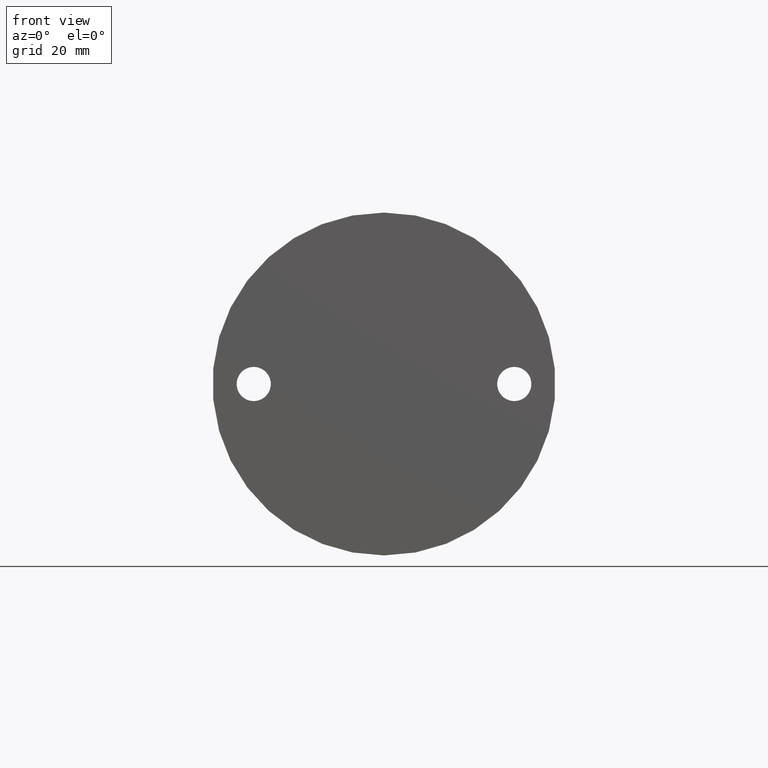
[diagram: clean part render]
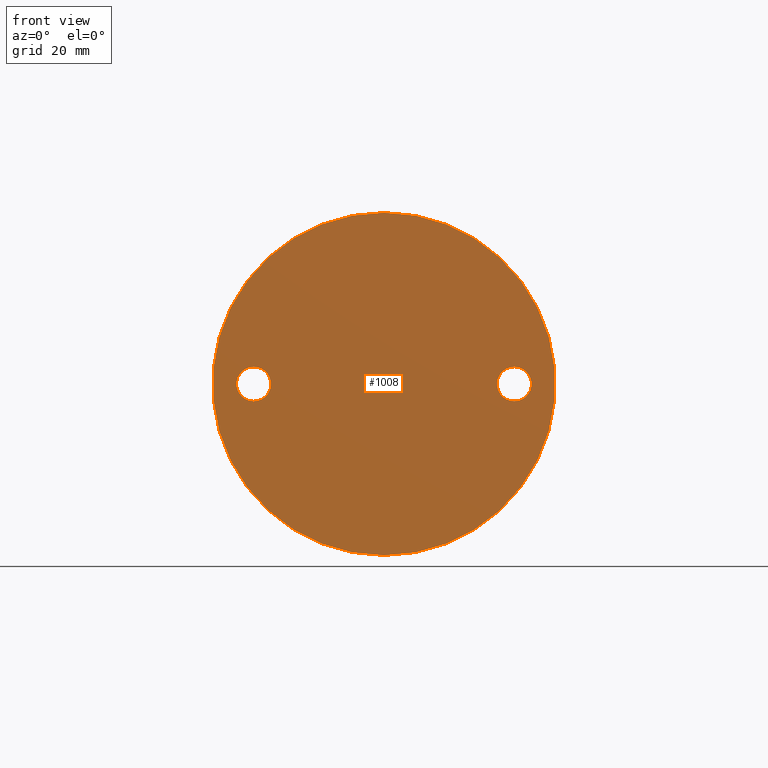
[diagram: same view with one face highlighted and labeled with its STEP entity id]
A machine part, front view. The second image highlights one B-rep face of the part: STEP entity #1008.
In plain terms, the highlighted planar face has unit normal (0, 1, 0).
Its self-contained STEP definition (entity closure, byte-faithful):
#169=FACE_BOUND('',#236,.T.);
#170=FACE_BOUND('',#237,.T.);
#177=FACE_OUTER_BOUND('',#235,.T.);
#235=EDGE_LOOP('',(#626));
#236=EDGE_LOOP('',(#627,#628));
#237=EDGE_LOOP('',(#629,#630));
#301=CIRCLE('',#1166,62.5);
#302=CIRCLE('',#1167,6.25);
#303=CIRCLE('',#1168,6.25);
#304=CIRCLE('',#1169,6.25);
#305=CIRCLE('',#1170,6.25);
#372=VERTEX_POINT('',#1591);
#373=VERTEX_POINT('',#1593);
#374=VERTEX_POINT('',#1594);
#375=VERTEX_POINT('',#1597);
#376=VERTEX_POINT('',#1598);
#474=EDGE_CURVE('',#372,#372,#301,.T.);
#475=EDGE_CURVE('',#373,#374,#302,.T.);
#476=EDGE_CURVE('',#374,#373,#303,.T.);
#477=EDGE_CURVE('',#375,#376,#304,.T.);
#478=EDGE_CURVE('',#376,#375,#305,.T.);
#626=ORIENTED_EDGE('',*,*,#474,.F.);
#627=ORIENTED_EDGE('',*,*,#475,.F.);
#628=ORIENTED_EDGE('',*,*,#476,.F.);
#629=ORIENTED_EDGE('',*,*,#477,.F.);
#630=ORIENTED_EDGE('',*,*,#478,.F.);
#930=PLANE('',#1165);
#1008=ADVANCED_FACE('',(#177,#169,#170),#930,.F.);
#1165=AXIS2_PLACEMENT_3D('',#1590,#1301,#1302);
#1166=AXIS2_PLACEMENT_3D('',#1592,#1303,#1304);
#1167=AXIS2_PLACEMENT_3D('',#1595,#1305,#1306);
#1168=AXIS2_PLACEMENT_3D('',#1596,#1307,#1308);
#1169=AXIS2_PLACEMENT_3D('',#1599,#1309,#1310);
#1170=AXIS2_PLACEMENT_3D('',#1600,#1311,#1312);
#1301=DIRECTION('center_axis',(0.,1.,0.));
#1302=DIRECTION('ref_axis',(0.,0.,1.));
#1303=DIRECTION('center_axis',(0.,1.,0.));
#1304=DIRECTION('ref_axis',(0.,0.,1.));
#1305=DIRECTION('center_axis',(0.,-1.,0.));
#1306=DIRECTION('ref_axis',(0.,0.,-1.));
#1307=DIRECTION('center_axis',(0.,-1.,0.));
#1308=DIRECTION('ref_axis',(0.,0.,-1.));
#1309=DIRECTION('center_axis',(0.,-1.,0.));
#1310=DIRECTION('ref_axis',(0.,0.,-1.));
#1311=DIRECTION('center_axis',(0.,-1.,0.));
#1312=DIRECTION('ref_axis',(0.,0.,-1.));
#1590=CARTESIAN_POINT('Origin',(0.,0.,0.));
#1591=CARTESIAN_POINT('',(0.,0.,62.5));
#1592=CARTESIAN_POINT('Origin',(0.,0.,0.));
#1593=CARTESIAN_POINT('',(-47.5,0.,-6.25));
#1594=CARTESIAN_POINT('',(-47.5,0.,6.25));
#1595=CARTESIAN_POINT('Origin',(-47.5,0.,0.));
#1596=CARTESIAN_POINT('Origin',(-47.5,0.,0.));
#1597=CARTESIAN_POINT('',(47.5,0.,-6.25));
#1598=CARTESIAN_POINT('',(47.5,0.,6.25));
#1599=CARTESIAN_POINT('Origin',(47.5,0.,0.));
#1600=CARTESIAN_POINT('Origin',(47.5,0.,0.));